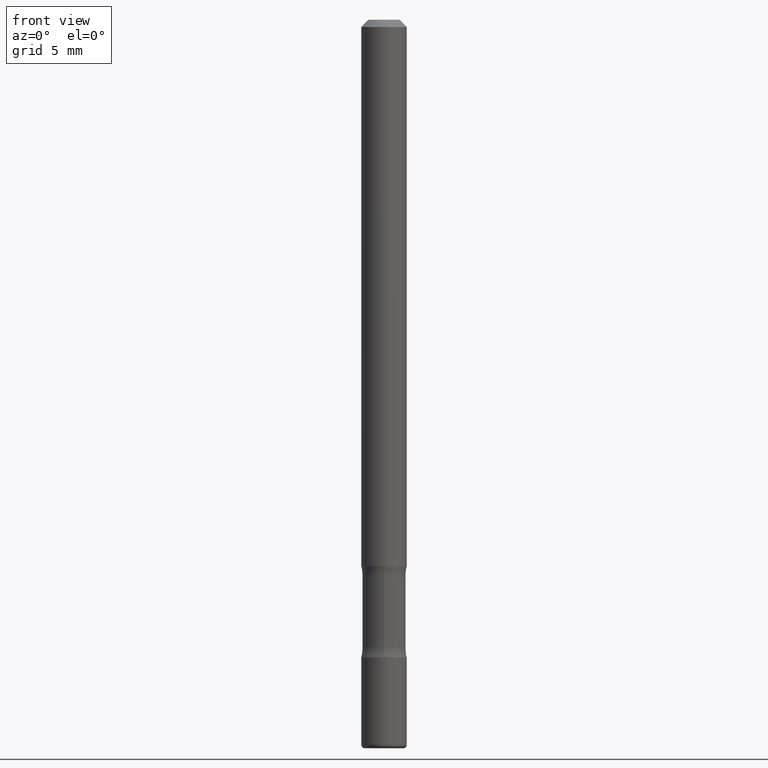
[diagram: clean part render]
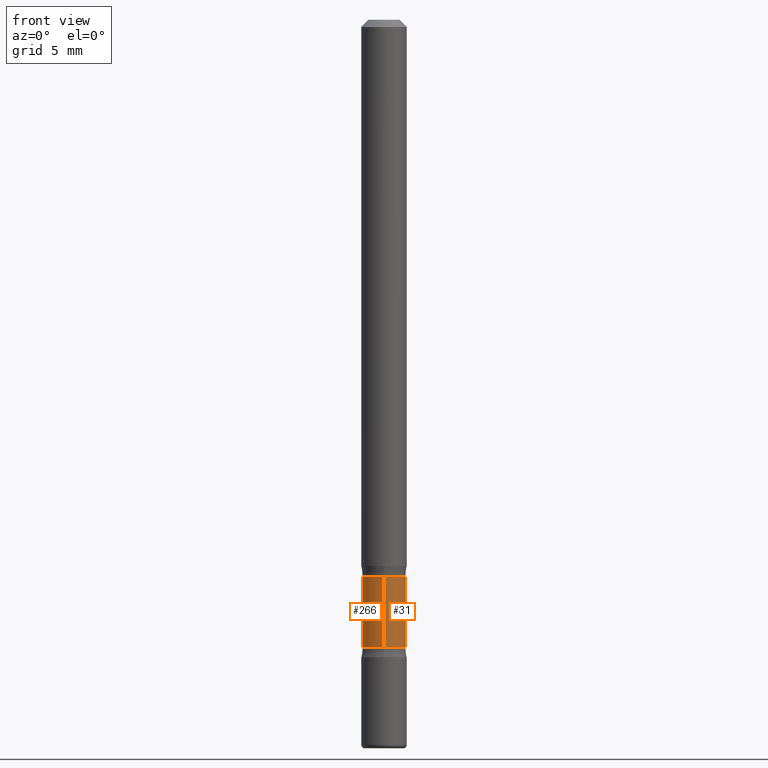
[diagram: same view with one multi-face feature highlighted, each face labeled with its STEP entity id]
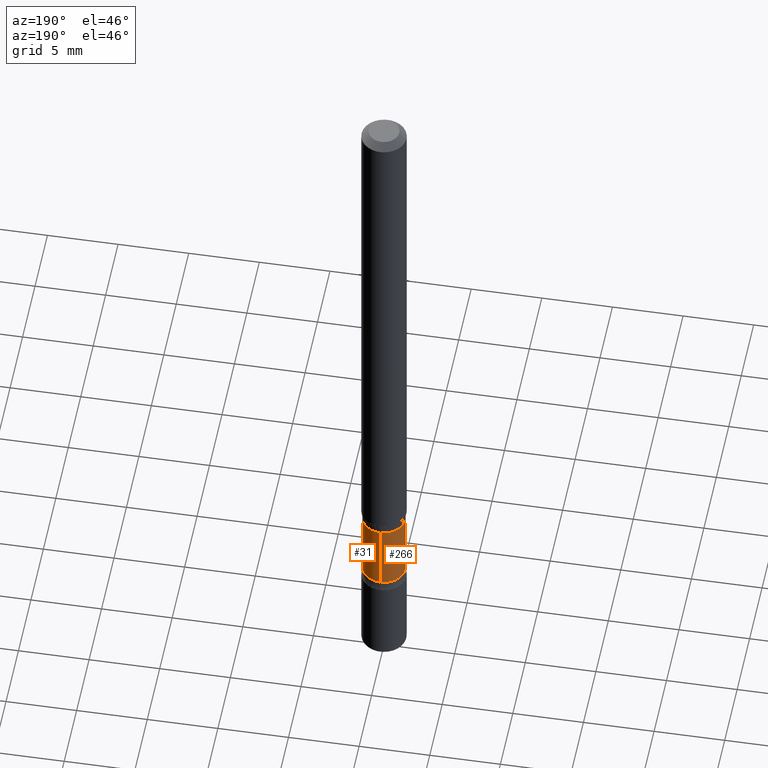
[diagram: same view with one multi-face feature highlighted, each face labeled with its STEP entity id]
A machine part, front view. The highlighted faces form ONE feature: a constant-radius fillet chain: 2 tangent blend faces with common blend radius 1.5081 mm. The faces share edges in the B-rep.
A second angle (auxiliary view) of the same feature is appended — it is thin or edge-on in the first view.
Their STEP definitions:
[1] entity #31 (Cylinder):
#20 = CARTESIAN_POINT ( 'NONE',  ( 4.146134089876587187E-16, 0.05937499999999455713, -1.527775607554112458 ) ) ;
#31 = ADVANCED_FACE ( 'NONE', ( #95 ), #43, .T. ) ;
#43 = CYLINDRICAL_SURFACE ( 'NONE', #90, 0.05937499999999967110 ) ;
#50 = DIRECTION ( 'NONE',  ( 6.982962677686266711E-15, 1.000000000000000000, -4.601007147224048087E-15 ) ) ;
#90 = AXIS2_PLACEMENT_3D ( 'NONE', #264, #441, #50 ) ;
#95 = FACE_OUTER_BOUND ( 'NONE', #141, .T. ) ;
#109 = CARTESIAN_POINT ( 'NONE',  ( 4.146134089876643393E-16, 0.05937499999999401590, -1.722224392445885544 ) ) ;
#117 = EDGE_CURVE ( 'NONE', #221, #390, #349, .T. ) ;
#124 = EDGE_CURVE ( 'NONE', #221, #242, #493, .T. ) ;
#129 = DIRECTION ( 'NONE',  ( 8.010757980930134339E-30, -5.846345719468729014E-15, -1.000000000000000000 ) ) ;
#141 = EDGE_LOOP ( 'NONE', ( #144, #400, #473, #231 ) ) ;
#144 = ORIENTED_EDGE ( 'NONE', *, *, #124, .T. ) ;
#159 = AXIS2_PLACEMENT_3D ( 'NONE', #360, #175, #208 ) ;
#167 = DIRECTION ( 'NONE',  ( 8.010757980930134339E-30, -5.846345719468729014E-15, -1.000000000000000000 ) ) ;
#175 = DIRECTION ( 'NONE',  ( 8.010757980930134339E-30, -5.846345719468729014E-15, -1.000000000000000000 ) ) ;
#180 = LINE ( 'NONE', #550, #467 ) ;
#208 = DIRECTION ( 'NONE',  ( 6.982962677686265133E-15, 1.000000000000000000, -4.601007147224025211E-15 ) ) ;
#209 = DIRECTION ( 'NONE',  ( 6.982962677686266711E-15, 1.000000000000000000, -4.601007147224070964E-15 ) ) ;
#221 = VERTEX_POINT ( 'NONE', #20 ) ;
#231 = ORIENTED_EDGE ( 'NONE', *, *, #117, .F. ) ;
#242 = VERTEX_POINT ( 'NONE', #325 ) ;
#264 = CARTESIAN_POINT ( 'NONE',  ( 4.479839360347238409E-29, -7.571678772842681008E-15, -1.999999999999998446 ) ) ;
#279 = CARTESIAN_POINT ( 'NONE',  ( -4.180615967391622360E-16, -0.05937500000000592304, -1.722224392445884877 ) ) ;
#291 = AXIS2_PLACEMENT_3D ( 'NONE', #428, #129, #209 ) ;
#325 = CARTESIAN_POINT ( 'NONE',  ( -4.180615967391589820E-16, -0.05937500000000418832, -1.527775607554111792 ) ) ;
#331 = DIRECTION ( 'NONE',  ( 8.010757980930134339E-30, -5.846345719468729014E-15, -1.000000000000000000 ) ) ;
#349 = LINE ( 'NONE', #485, #366 ) ;
#356 = CIRCLE ( 'NONE', #159, 0.05937499999999996253 ) ;
#360 = CARTESIAN_POINT ( 'NONE',  ( 4.257320043835055680E-29, -5.947706538645865427E-15, -1.722224392445885321 ) ) ;
#362 = EDGE_CURVE ( 'NONE', #390, #446, #356, .T. ) ;
#366 = VECTOR ( 'NONE', #167, 39.37007874015748143 ) ;
#381 = EDGE_CURVE ( 'NONE', #242, #446, #180, .T. ) ;
#390 = VERTEX_POINT ( 'NONE', #109 ) ;
#400 = ORIENTED_EDGE ( 'NONE', *, *, #381, .T. ) ;
#428 = CARTESIAN_POINT ( 'NONE',  ( 4.101551828289662394E-29, -4.810891717437951800E-15, -1.527775607554112014 ) ) ;
#441 = DIRECTION ( 'NONE',  ( 8.010757980930134339E-30, -5.846345719468729014E-15, -1.000000000000000000 ) ) ;
#446 = VERTEX_POINT ( 'NONE', #279 ) ;
#467 = VECTOR ( 'NONE', #331, 39.37007874015748143 ) ;
#473 = ORIENTED_EDGE ( 'NONE', *, *, #362, .F. ) ;
#485 = CARTESIAN_POINT ( 'NONE',  ( 4.146134089876645858E-16, 0.05937499999999210076, -1.999999999999998668 ) ) ;
#493 = CIRCLE ( 'NONE', #291, 0.05937499999999937272 ) ;
#550 = CARTESIAN_POINT ( 'NONE',  ( -4.073420686176375718E-16, -0.05937500000000724837, -1.999999999999998002 ) ) ;
[2] entity #266 (Cylinder):
#8 = DIRECTION ( 'NONE',  ( 8.010757980930134339E-30, -5.846345719468729014E-15, -1.000000000000000000 ) ) ;
#20 = CARTESIAN_POINT ( 'NONE',  ( 4.146134089876587187E-16, 0.05937499999999455713, -1.527775607554112458 ) ) ;
#96 = ORIENTED_EDGE ( 'NONE', *, *, #492, .F. ) ;
#109 = CARTESIAN_POINT ( 'NONE',  ( 4.146134089876643393E-16, 0.05937499999999401590, -1.722224392445885544 ) ) ;
#114 = CIRCLE ( 'NONE', #509, 0.05937499999999996253 ) ;
#117 = EDGE_CURVE ( 'NONE', #221, #390, #349, .T. ) ;
#158 = AXIS2_PLACEMENT_3D ( 'NONE', #522, #315, #299 ) ;
#166 = ORIENTED_EDGE ( 'NONE', *, *, #381, .F. ) ;
#167 = DIRECTION ( 'NONE',  ( 8.010757980930134339E-30, -5.846345719468729014E-15, -1.000000000000000000 ) ) ;
#180 = LINE ( 'NONE', #550, #467 ) ;
#214 = ORIENTED_EDGE ( 'NONE', *, *, #301, .T. ) ;
#221 = VERTEX_POINT ( 'NONE', #20 ) ;
#242 = VERTEX_POINT ( 'NONE', #325 ) ;
#243 = FACE_OUTER_BOUND ( 'NONE', #527, .T. ) ;
#266 = ADVANCED_FACE ( 'NONE', ( #243 ), #372, .T. ) ;
#270 = DIRECTION ( 'NONE',  ( 8.010757980930134339E-30, -5.846345719468729014E-15, -1.000000000000000000 ) ) ;
#279 = CARTESIAN_POINT ( 'NONE',  ( -4.180615967391622360E-16, -0.05937500000000592304, -1.722224392445884877 ) ) ;
#299 = DIRECTION ( 'NONE',  ( 6.982962677686266711E-15, 1.000000000000000000, -4.601007147224070964E-15 ) ) ;
#301 = EDGE_CURVE ( 'NONE', #242, #221, #514, .T. ) ;
#315 = DIRECTION ( 'NONE',  ( 8.010757980930134339E-30, -5.846345719468729014E-15, -1.000000000000000000 ) ) ;
#321 = AXIS2_PLACEMENT_3D ( 'NONE', #532, #8, #506 ) ;
#325 = CARTESIAN_POINT ( 'NONE',  ( -4.180615967391589820E-16, -0.05937500000000418832, -1.527775607554111792 ) ) ;
#331 = DIRECTION ( 'NONE',  ( 8.010757980930134339E-30, -5.846345719468729014E-15, -1.000000000000000000 ) ) ;
#349 = LINE ( 'NONE', #485, #366 ) ;
#366 = VECTOR ( 'NONE', #167, 39.37007874015748143 ) ;
#372 = CYLINDRICAL_SURFACE ( 'NONE', #321, 0.05937499999999967110 ) ;
#376 = CARTESIAN_POINT ( 'NONE',  ( 4.257320043835055680E-29, -5.947706538645865427E-15, -1.722224392445885321 ) ) ;
#381 = EDGE_CURVE ( 'NONE', #242, #446, #180, .T. ) ;
#390 = VERTEX_POINT ( 'NONE', #109 ) ;
#405 = ORIENTED_EDGE ( 'NONE', *, *, #117, .T. ) ;
#446 = VERTEX_POINT ( 'NONE', #279 ) ;
#467 = VECTOR ( 'NONE', #331, 39.37007874015748143 ) ;
#485 = CARTESIAN_POINT ( 'NONE',  ( 4.146134089876645858E-16, 0.05937499999999210076, -1.999999999999998668 ) ) ;
#492 = EDGE_CURVE ( 'NONE', #446, #390, #114, .T. ) ;
#506 = DIRECTION ( 'NONE',  ( 6.982962677686266711E-15, 1.000000000000000000, -4.601007147224048087E-15 ) ) ;
#509 = AXIS2_PLACEMENT_3D ( 'NONE', #376, #270, #542 ) ;
#514 = CIRCLE ( 'NONE', #158, 0.05937499999999937272 ) ;
#522 = CARTESIAN_POINT ( 'NONE',  ( 4.101551828289662394E-29, -4.810891717437951800E-15, -1.527775607554112014 ) ) ;
#527 = EDGE_LOOP ( 'NONE', ( #166, #214, #405, #96 ) ) ;
#532 = CARTESIAN_POINT ( 'NONE',  ( 4.479839360347238409E-29, -7.571678772842681008E-15, -1.999999999999998446 ) ) ;
#542 = DIRECTION ( 'NONE',  ( 6.982962677686265133E-15, 1.000000000000000000, -4.601007147224025211E-15 ) ) ;
#550 = CARTESIAN_POINT ( 'NONE',  ( -4.073420686176375718E-16, -0.05937500000000724837, -1.999999999999998002 ) ) ;